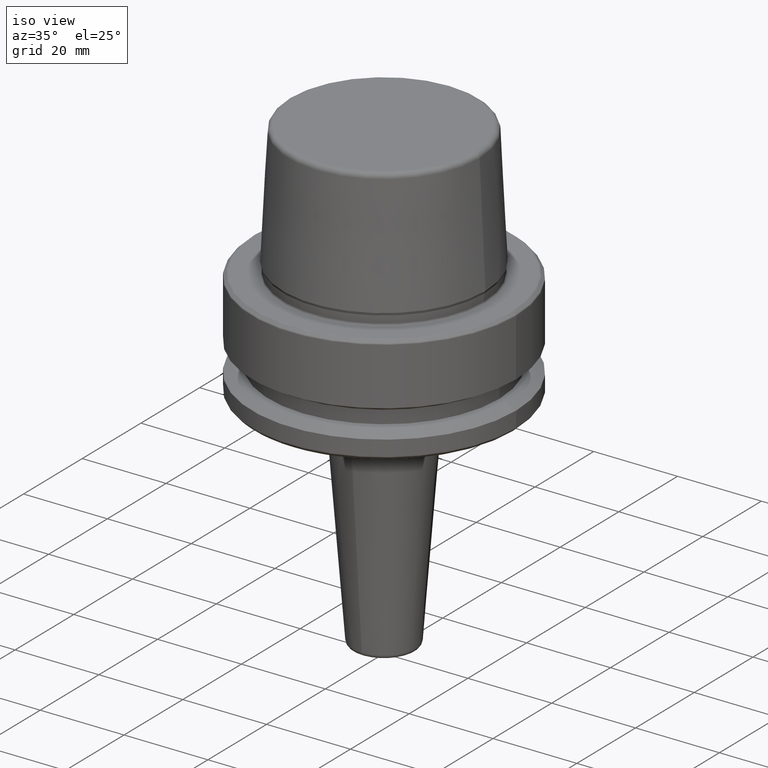
[diagram: clean part render]
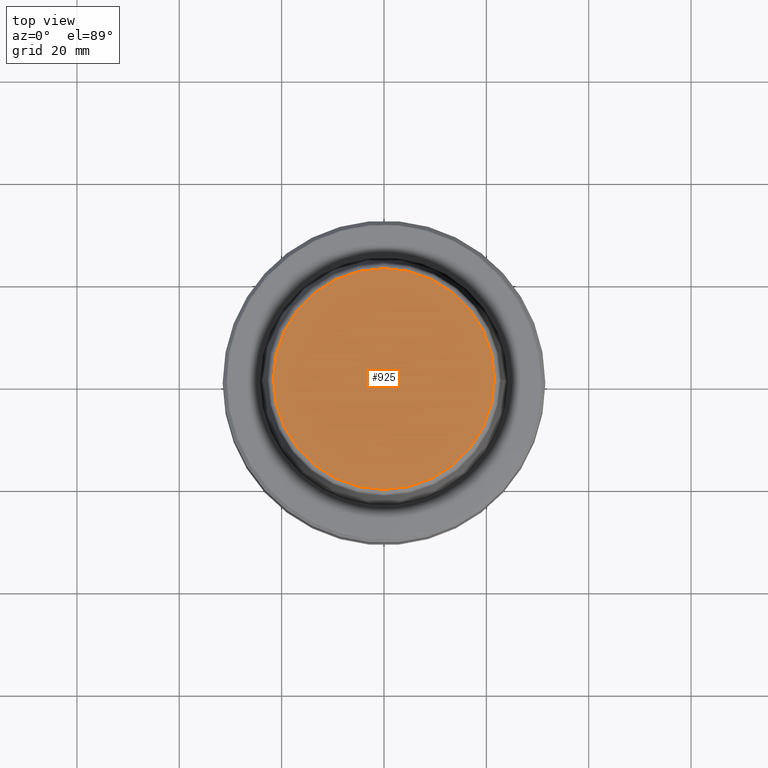
[diagram: tour spotlight — one face highlighted and labeled with its STEP entity id]
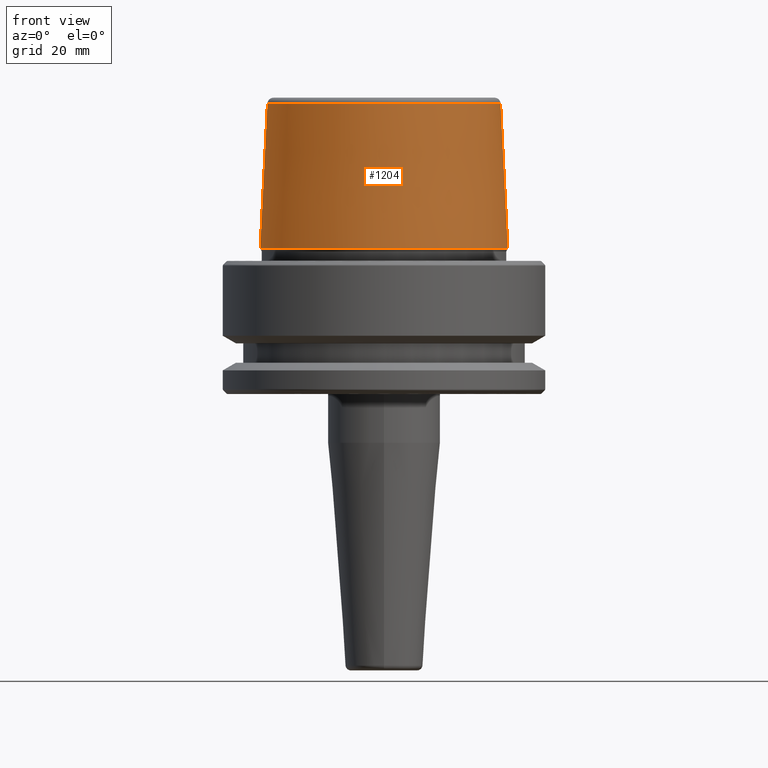
[diagram: tour spotlight — one face highlighted and labeled with its STEP entity id]
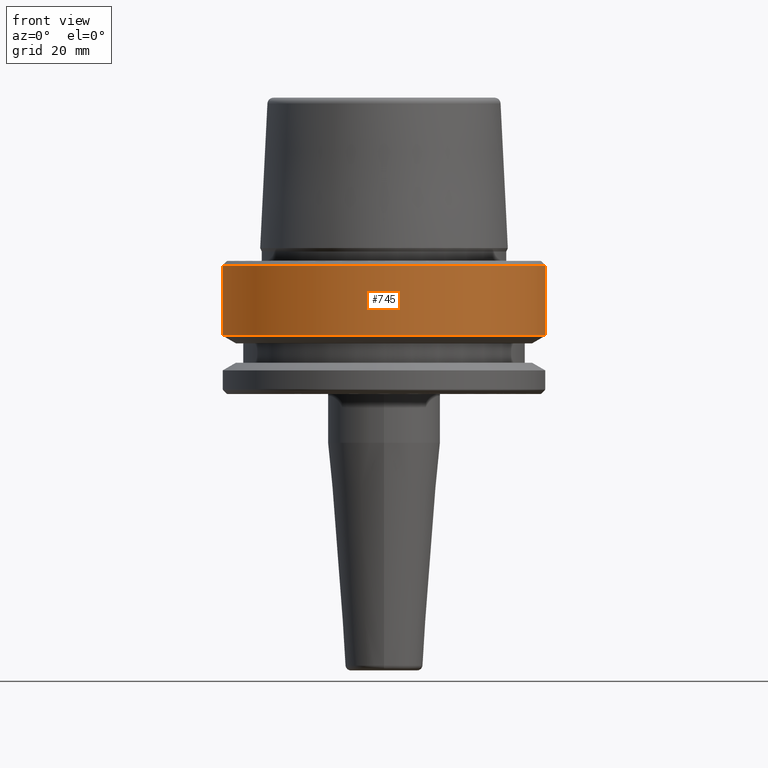
[diagram: tour spotlight — one face highlighted and labeled with its STEP entity id]
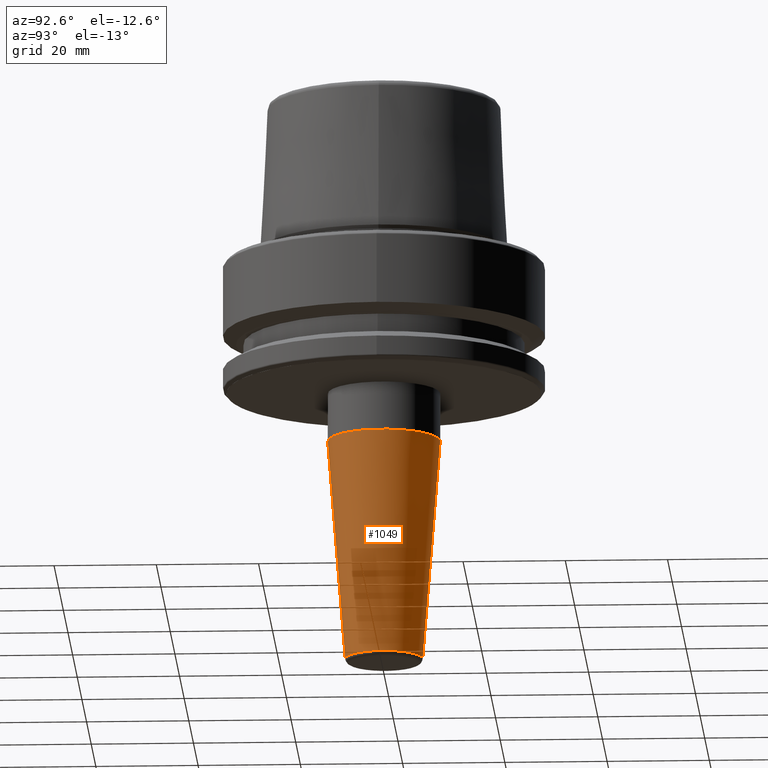
[diagram: tour spotlight — one face highlighted and labeled with its STEP entity id]
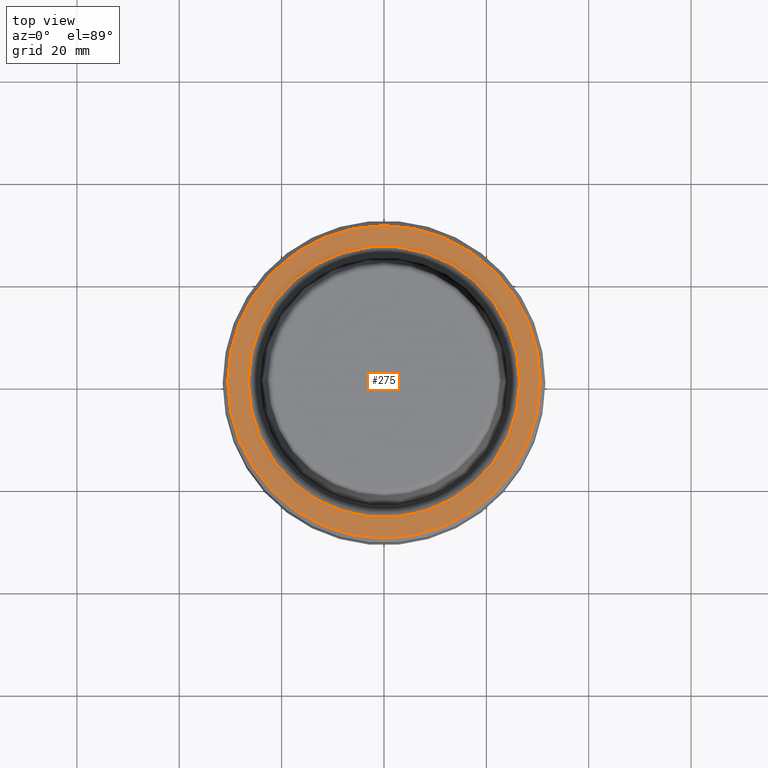
[diagram: tour spotlight — one face highlighted and labeled with its STEP entity id]
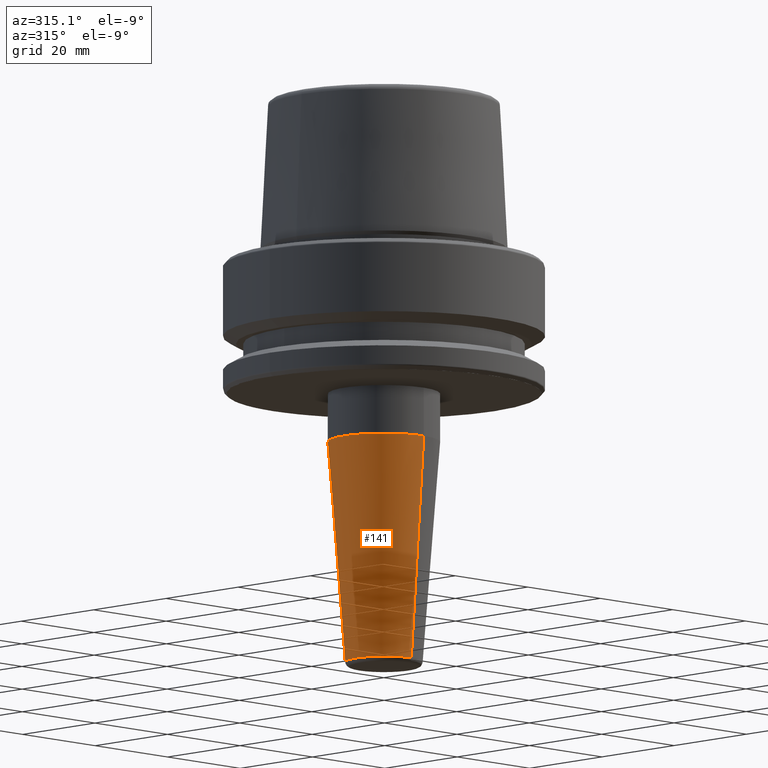
[diagram: tour spotlight — one face highlighted and labeled with its STEP entity id]
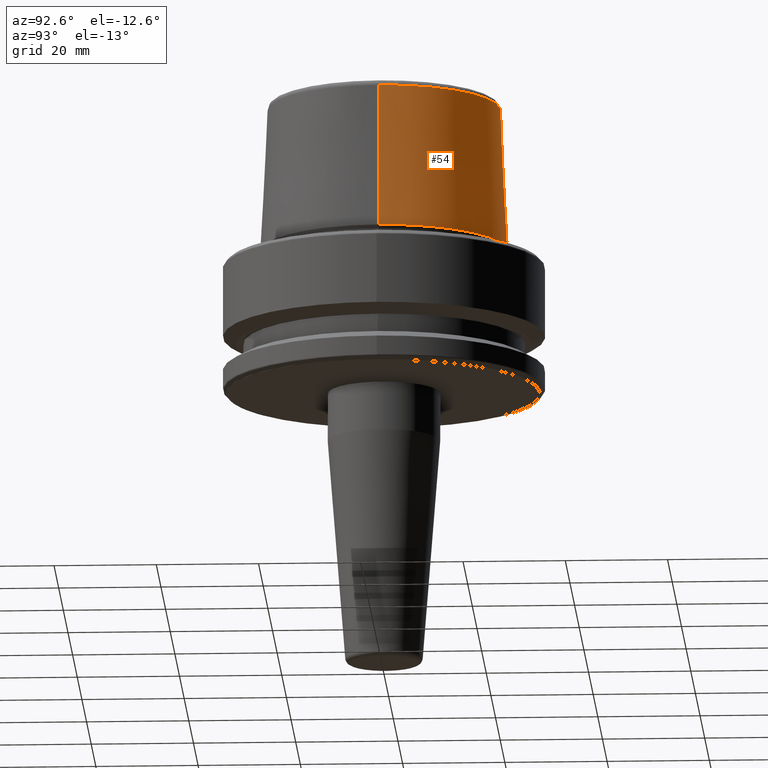
[diagram: tour spotlight — one face highlighted and labeled with its STEP entity id]
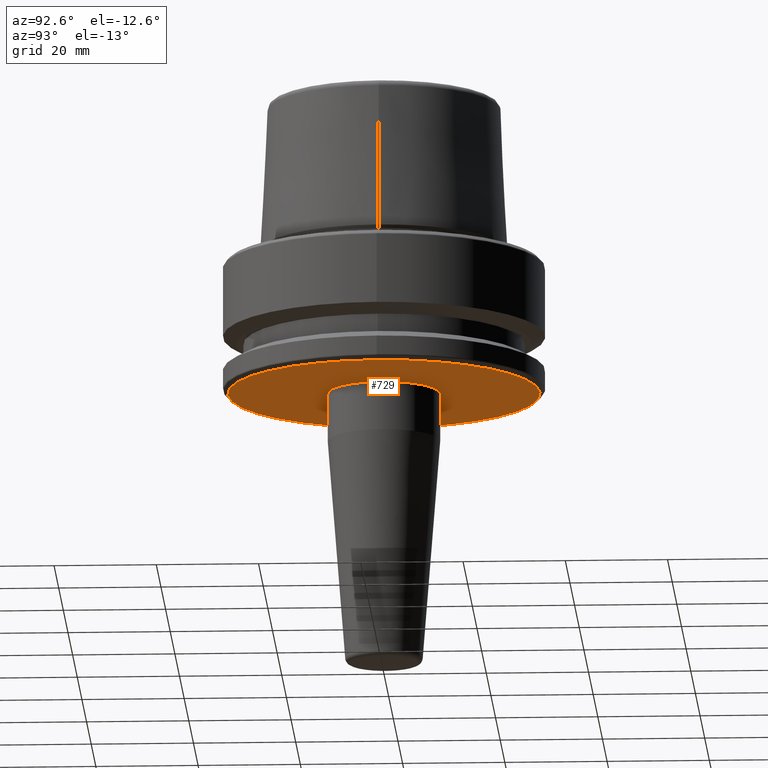
[diagram: tour spotlight — one face highlighted and labeled with its STEP entity id]
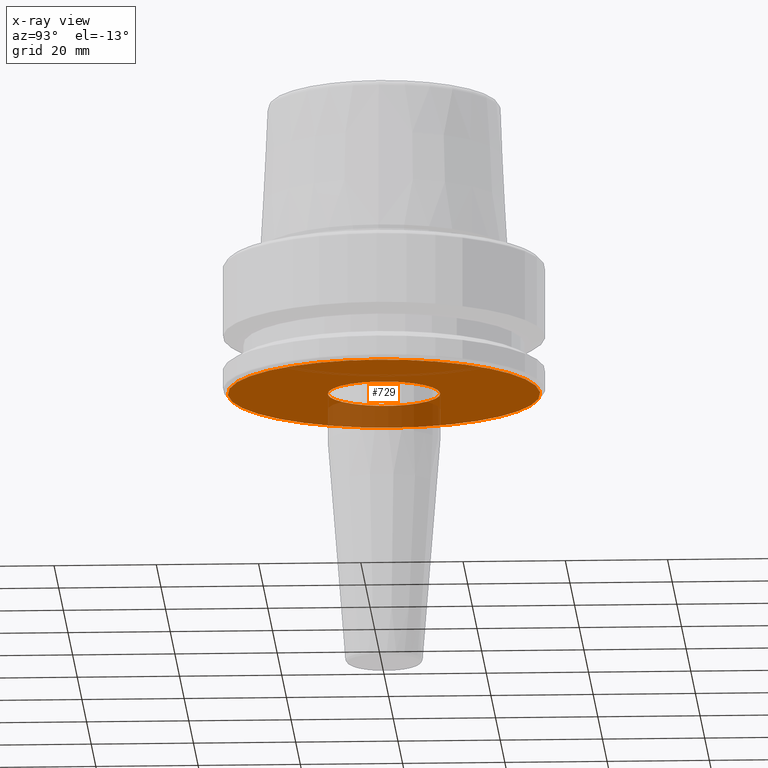
[diagram: x-ray of the same camera — body ghosted, this tour face saturated]
A machine part: a face-by-face anatomy tour. The part has 46 B-rep faces; the first image is the clean iso view, then the 8 largest visible faces are spotlighted one at a time (largest first), each with its STEP entity span.

Face 1 — top view, entity #925. In plain terms, the highlighted planar face has unit normal (0, 0, -1).
Definition (entity closure, byte-faithful):
#11 = CIRCLE ( 'NONE', #1117, 21.58108272732117100 ) ;
#38 = AXIS2_PLACEMENT_3D ( 'NONE', #519, #338, #1011 ) ;
#162 = FACE_OUTER_BOUND ( 'NONE', #433, .T. ) ;
#174 = VERTEX_POINT ( 'NONE', #688 ) ;
#199 = CARTESIAN_POINT ( 'NONE',  ( 0.0000000000000000000, 0.0000000000000000000, 31.89999999999999900 ) ) ;
#278 = DIRECTION ( 'NONE',  ( -0.0000000000000000000, -0.0000000000000000000, 1.000000000000000000 ) ) ;
#303 = DIRECTION ( 'NONE',  ( 1.000000000000000000, 0.0000000000000000000, 0.0000000000000000000 ) ) ;
#338 = DIRECTION ( 'NONE',  ( 0.0000000000000000000, 0.0000000000000000000, -1.000000000000000000 ) ) ;
#342 = CARTESIAN_POINT ( 'NONE',  ( -21.58108272732117100, 2.716307157494421400E-015, 31.89999999999999900 ) ) ;
#417 = EDGE_CURVE ( 'NONE', #174, #1010, #1253, .T. ) ;
#433 = EDGE_LOOP ( 'NONE', ( #886, #1067 ) ) ;
#519 = CARTESIAN_POINT ( 'NONE',  ( 0.0000000000000000000, 0.0000000000000000000, 31.89999999999999900 ) ) ;
#688 = CARTESIAN_POINT ( 'NONE',  ( 21.58108272732117100, 0.0000000000000000000, 31.89999999999999900 ) ) ;
#692 = AXIS2_PLACEMENT_3D ( 'NONE', #857, #278, #811 ) ;
#703 = EDGE_CURVE ( 'NONE', #1010, #174, #11, .T. ) ;
#807 = PLANE ( 'NONE',  #38 ) ;
#811 = DIRECTION ( 'NONE',  ( 1.000000000000000000, 0.0000000000000000000, 0.0000000000000000000 ) ) ;
#857 = CARTESIAN_POINT ( 'NONE',  ( 0.0000000000000000000, 0.0000000000000000000, 31.89999999999999900 ) ) ;
#872 = DIRECTION ( 'NONE',  ( -0.0000000000000000000, -0.0000000000000000000, 1.000000000000000000 ) ) ;
#886 = ORIENTED_EDGE ( 'NONE', *, *, #417, .T. ) ;
#925 = ADVANCED_FACE ( 'NONE', ( #162 ), #807, .F. ) ;
#1010 = VERTEX_POINT ( 'NONE', #342 ) ;
#1011 = DIRECTION ( 'NONE',  ( -1.000000000000000000, 0.0000000000000000000, -0.0000000000000000000 ) ) ;
#1067 = ORIENTED_EDGE ( 'NONE', *, *, #703, .T. ) ;
#1117 = AXIS2_PLACEMENT_3D ( 'NONE', #199, #872, #303 ) ;
#1253 = CIRCLE ( 'NONE', #692, 21.58108272732117100 ) ;

Face 2 — front view, entity #1204. In plain terms, the highlighted conical surface has half-angle 2.868 deg.
Definition (entity closure, byte-faithful):
#70 = DIRECTION ( 'NONE',  ( 1.000000000000000000, 0.0000000000000000000, 0.0000000000000000000 ) ) ;
#110 = CARTESIAN_POINT ( 'NONE',  ( 22.77957961851797100, 2.876386432489616700E-015, 30.76004333261571900 ) ) ;
#189 = VECTOR ( 'NONE', #518, 1000.000000000000200 ) ;
#243 = EDGE_CURVE ( 'NONE', #754, #350, #1140, .T. ) ;
#264 = DIRECTION ( 'NONE',  ( 0.05003611051310804400, 6.127656258166099700E-018, -0.9987474093306675200 ) ) ;
#273 = ORIENTED_EDGE ( 'NONE', *, *, #1092, .F. ) ;
#341 = AXIS2_PLACEMENT_3D ( 'NONE', #1242, #1143, #848 ) ;
#350 = VERTEX_POINT ( 'NONE', #1098 ) ;
#445 = EDGE_CURVE ( 'NONE', #1045, #601, #450, .T. ) ;
#450 = LINE ( 'NONE', #792, #189 ) ;
#469 = CARTESIAN_POINT ( 'NONE',  ( -24.19537568275369200, 2.963078938405201500E-015, 2.500000000000002200 ) ) ;
#518 = DIRECTION ( 'NONE',  ( -0.05003611051310804400, 0.0000000000000000000, -0.9987474093306675200 ) ) ;
#535 = AXIS2_PLACEMENT_3D ( 'NONE', #573, #1251, #673 ) ;
#573 = CARTESIAN_POINT ( 'NONE',  ( 0.0000000000000000000, 0.0000000000000000000, 2.500000000000002200 ) ) ;
#601 = VERTEX_POINT ( 'NONE', #469 ) ;
#611 = EDGE_CURVE ( 'NONE', #601, #350, #779, .T. ) ;
#612 = ORIENTED_EDGE ( 'NONE', *, *, #243, .F. ) ;
#649 = DIRECTION ( 'NONE',  ( -0.0000000000000000000, -0.0000000000000000000, 1.000000000000000000 ) ) ;
#673 = DIRECTION ( 'NONE',  ( 1.000000000000000000, 0.0000000000000000000, 0.0000000000000000000 ) ) ;
#701 = CONICAL_SURFACE ( 'NONE', #341, 24.19537568275369200, 0.05005701257455997400 ) ;
#711 = ORIENTED_EDGE ( 'NONE', *, *, #445, .T. ) ;
#725 = CARTESIAN_POINT ( 'NONE',  ( 24.19537568275369200, 2.963078938405201500E-015, 2.500000000000002200 ) ) ;
#754 = VERTEX_POINT ( 'NONE', #110 ) ;
#779 = CIRCLE ( 'NONE', #535, 24.19537568275369200 ) ;
#792 = CARTESIAN_POINT ( 'NONE',  ( -24.19537568275369200, 0.0000000000000000000, 2.500000000000002200 ) ) ;
#829 = CARTESIAN_POINT ( 'NONE',  ( -22.77957961851797100, 0.0000000000000000000, 30.76004333261571900 ) ) ;
#848 = DIRECTION ( 'NONE',  ( -1.000000000000000000, 0.0000000000000000000, 0.0000000000000000000 ) ) ;
#873 = AXIS2_PLACEMENT_3D ( 'NONE', #1226, #649, #70 ) ;
#884 = VECTOR ( 'NONE', #264, 1000.000000000000200 ) ;
#989 = FACE_OUTER_BOUND ( 'NONE', #1237, .T. ) ;
#1045 = VERTEX_POINT ( 'NONE', #829 ) ;
#1092 = EDGE_CURVE ( 'NONE', #1045, #754, #1178, .T. ) ;
#1098 = CARTESIAN_POINT ( 'NONE',  ( 24.19537568275369200, 0.0000000000000000000, 2.500000000000002200 ) ) ;
#1140 = LINE ( 'NONE', #725, #884 ) ;
#1143 = DIRECTION ( 'NONE',  ( 0.0000000000000000000, 0.0000000000000000000, -1.000000000000000000 ) ) ;
#1178 = CIRCLE ( 'NONE', #873, 22.77957961851797100 ) ;
#1204 = ADVANCED_FACE ( 'NONE', ( #989 ), #701, .T. ) ;
#1219 = ORIENTED_EDGE ( 'NONE', *, *, #611, .T. ) ;
#1226 = CARTESIAN_POINT ( 'NONE',  ( 0.0000000000000000000, 0.0000000000000000000, 30.76004333261571900 ) ) ;
#1237 = EDGE_LOOP ( 'NONE', ( #612, #273, #711, #1219 ) ) ;
#1242 = CARTESIAN_POINT ( 'NONE',  ( 0.0000000000000000000, 0.0000000000000000000, 2.500000000000002200 ) ) ;
#1251 = DIRECTION ( 'NONE',  ( -0.0000000000000000000, -0.0000000000000000000, 1.000000000000000000 ) ) ;

Face 3 — front view, entity #745. In plain terms, the highlighted cylindrical surface (partial cylindrical patch) has radius 31.5 mm, axis along (-0, -0, 1).
Definition (entity closure, byte-faithful):
#7 = DIRECTION ( 'NONE',  ( 1.000000000000000000, 0.0000000000000000000, 0.0000000000000000000 ) ) ;
#51 = VECTOR ( 'NONE', #347, 1000.000000000000000 ) ;
#117 = CARTESIAN_POINT ( 'NONE',  ( 0.0000000000000000000, 0.0000000000000000000, -14.62250092524070100 ) ) ;
#157 = VERTEX_POINT ( 'NONE', #494 ) ;
#195 = CARTESIAN_POINT ( 'NONE',  ( 31.50000000000000000, 0.0000000000000000000, -14.62250092524070100 ) ) ;
#197 = CIRCLE ( 'NONE', #449, 31.50000000000000000 ) ;
#200 = EDGE_CURVE ( 'NONE', #768, #157, #315, .T. ) ;
#205 = VERTEX_POINT ( 'NONE', #195 ) ;
#215 = DIRECTION ( 'NONE',  ( 1.000000000000000000, 0.0000000000000000000, 0.0000000000000000000 ) ) ;
#225 = EDGE_LOOP ( 'NONE', ( #509, #420, #1137, #1085 ) ) ;
#263 = CYLINDRICAL_SURFACE ( 'NONE', #326, 31.50000000000000000 ) ;
#270 = CIRCLE ( 'NONE', #1058, 31.50000000000000000 ) ;
#294 = FACE_OUTER_BOUND ( 'NONE', #225, .T. ) ;
#315 = LINE ( 'NONE', #1177, #51 ) ;
#326 = AXIS2_PLACEMENT_3D ( 'NONE', #1172, #1080, #587 ) ;
#347 = DIRECTION ( 'NONE',  ( -0.0000000000000000000, -0.0000000000000000000, 1.000000000000000000 ) ) ;
#420 = ORIENTED_EDGE ( 'NONE', *, *, #842, .T. ) ;
#449 = AXIS2_PLACEMENT_3D ( 'NONE', #117, #795, #215 ) ;
#494 = CARTESIAN_POINT ( 'NONE',  ( -31.50000000000000000, 3.857637417314162700E-015, -0.9656854249492363700 ) ) ;
#509 = ORIENTED_EDGE ( 'NONE', *, *, #200, .F. ) ;
#583 = DIRECTION ( 'NONE',  ( -0.0000000000000000000, -0.0000000000000000000, 1.000000000000000000 ) ) ;
#587 = DIRECTION ( 'NONE',  ( 1.000000000000000000, 0.0000000000000000000, 0.0000000000000000000 ) ) ;
#644 = DIRECTION ( 'NONE',  ( -0.0000000000000000000, -0.0000000000000000000, 1.000000000000000000 ) ) ;
#679 = CARTESIAN_POINT ( 'NONE',  ( 31.50000000000000000, 0.0000000000000000000, -0.9656854249492363700 ) ) ;
#680 = VERTEX_POINT ( 'NONE', #679 ) ;
#694 = EDGE_CURVE ( 'NONE', #157, #680, #270, .T. ) ;
#745 = ADVANCED_FACE ( 'NONE', ( #294 ), #263, .T. ) ;
#768 = VERTEX_POINT ( 'NONE', #982 ) ;
#795 = DIRECTION ( 'NONE',  ( -0.0000000000000000000, -0.0000000000000000000, 1.000000000000000000 ) ) ;
#842 = EDGE_CURVE ( 'NONE', #768, #205, #197, .T. ) ;
#982 = CARTESIAN_POINT ( 'NONE',  ( -31.50000000000000000, 3.857637417314162700E-015, -14.62250092524070100 ) ) ;
#1058 = AXIS2_PLACEMENT_3D ( 'NONE', #1162, #583, #7 ) ;
#1080 = DIRECTION ( 'NONE',  ( -0.0000000000000000000, -0.0000000000000000000, 1.000000000000000000 ) ) ;
#1082 = EDGE_CURVE ( 'NONE', #205, #680, #1209, .T. ) ;
#1085 = ORIENTED_EDGE ( 'NONE', *, *, #694, .F. ) ;
#1137 = ORIENTED_EDGE ( 'NONE', *, *, #1082, .T. ) ;
#1162 = CARTESIAN_POINT ( 'NONE',  ( 0.0000000000000000000, 0.0000000000000000000, -0.9656854249492363700 ) ) ;
#1172 = CARTESIAN_POINT ( 'NONE',  ( 0.0000000000000000000, 0.0000000000000000000, 78.96908074195309300 ) ) ;
#1177 = CARTESIAN_POINT ( 'NONE',  ( -31.50000000000000000, 3.857637417314162700E-015, 78.96908074195309300 ) ) ;
#1209 = LINE ( 'NONE', #1221, #1244 ) ;
#1221 = CARTESIAN_POINT ( 'NONE',  ( 31.50000000000000000, 0.0000000000000000000, 78.96908074195309300 ) ) ;
#1244 = VECTOR ( 'NONE', #644, 1000.000000000000000 ) ;

Face 4 — auxiliary view, entity #1049. In plain terms, the highlighted conical surface has half-angle 4.5 deg.
Definition (entity closure, byte-faithful):
#23 = DIRECTION ( 'NONE',  ( 9.608468044709195200E-018, 0.07845909572783767200, 0.9969173337331286300 ) ) ;
#41 = EDGE_CURVE ( 'NONE', #345, #274, #261, .T. ) ;
#58 = EDGE_CURVE ( 'NONE', #360, #345, #196, .T. ) ;
#144 = CARTESIAN_POINT ( 'NONE',  ( 0.0000000000000000000, -1.728708414195039000E-015, -35.52828342338443000 ) ) ;
#150 = DIRECTION ( 'NONE',  ( 0.0000000000000000000, -1.000000000000000000, 0.0000000000000000000 ) ) ;
#187 = VERTEX_POINT ( 'NONE', #825 ) ;
#196 = CIRCLE ( 'NONE', #313, 7.572526842074920800 ) ;
#208 = EDGE_LOOP ( 'NONE', ( #1088, #1034, #1096, #888 ) ) ;
#246 = DIRECTION ( 'NONE',  ( 0.0000000000000000000, 1.000000000000000000, 0.0000000000000000000 ) ) ;
#259 = CARTESIAN_POINT ( 'NONE',  ( 0.0000000000000000000, -1.728708414195039000E-015, -35.52828342338443000 ) ) ;
#261 = LINE ( 'NONE', #534, #485 ) ;
#274 = VERTEX_POINT ( 'NONE', #457 ) ;
#281 = CIRCLE ( 'NONE', #358, 10.99999999999999500 ) ;
#313 = AXIS2_PLACEMENT_3D ( 'NONE', #1151, #330, #705 ) ;
#330 = DIRECTION ( 'NONE',  ( -0.0000000000000000000, -1.814291554292374900E-016, -1.000000000000000000 ) ) ;
#345 = VERTEX_POINT ( 'NONE', #1033 ) ;
#353 = DIRECTION ( 'NONE',  ( 0.0000000000000000000, 1.814291554292374900E-016, 1.000000000000000000 ) ) ;
#358 = AXIS2_PLACEMENT_3D ( 'NONE', #144, #822, #246 ) ;
#360 = VERTEX_POINT ( 'NONE', #787 ) ;
#441 = FACE_OUTER_BOUND ( 'NONE', #208, .T. ) ;
#457 = CARTESIAN_POINT ( 'NONE',  ( 0.0000000000000000000, -10.99999999999999600, -35.52828342338443000 ) ) ;
#473 = EDGE_CURVE ( 'NONE', #360, #187, #1185, .T. ) ;
#485 = VECTOR ( 'NONE', #1028, 1000.000000000000200 ) ;
#534 = CARTESIAN_POINT ( 'NONE',  ( 0.0000000000000000000, -10.99999999999999600, -35.52828342338443000 ) ) ;
#677 = VECTOR ( 'NONE', #23, 999.9999999999998900 ) ;
#705 = DIRECTION ( 'NONE',  ( 0.0000000000000000000, 1.000000000000000000, 0.0000000000000000000 ) ) ;
#746 = AXIS2_PLACEMENT_3D ( 'NONE', #259, #353, #150 ) ;
#787 = CARTESIAN_POINT ( 'NONE',  ( 0.0000000000000000000, 7.572526842074911000, -79.07845909572785100 ) ) ;
#822 = DIRECTION ( 'NONE',  ( -0.0000000000000000000, -1.814291554292374900E-016, -1.000000000000000000 ) ) ;
#825 = CARTESIAN_POINT ( 'NONE',  ( 1.347111479062087800E-015, 10.99999999999999300, -35.52828342338443000 ) ) ;
#888 = ORIENTED_EDGE ( 'NONE', *, *, #41, .F. ) ;
#922 = CONICAL_SURFACE ( 'NONE', #746, 10.99999999999999500, 0.07853981633973736200 ) ;
#1007 = EDGE_CURVE ( 'NONE', #187, #274, #281, .T. ) ;
#1028 = DIRECTION ( 'NONE',  ( 0.0000000000000000000, -0.07845909572783729700, 0.9969173337331285200 ) ) ;
#1033 = CARTESIAN_POINT ( 'NONE',  ( 9.273670758604465400E-016, -7.572526842074930500, -79.07845909572785100 ) ) ;
#1034 = ORIENTED_EDGE ( 'NONE', *, *, #473, .T. ) ;
#1049 = ADVANCED_FACE ( 'NONE', ( #441 ), #922, .T. ) ;
#1050 = CARTESIAN_POINT ( 'NONE',  ( 1.347111479062087800E-015, 10.99999999999999300, -35.52828342338443000 ) ) ;
#1088 = ORIENTED_EDGE ( 'NONE', *, *, #58, .F. ) ;
#1096 = ORIENTED_EDGE ( 'NONE', *, *, #1007, .T. ) ;
#1151 = CARTESIAN_POINT ( 'NONE',  ( 0.0000000000000000000, -9.629980005223229000E-015, -79.07845909572785100 ) ) ;
#1185 = LINE ( 'NONE', #1050, #677 ) ;

Face 5 — top view, entity #275. In plain terms, the highlighted planar face has unit normal (0, 0, -1).
Definition (entity closure, byte-faithful):
#29 = ORIENTED_EDGE ( 'NONE', *, *, #1220, .T. ) ;
#35 = EDGE_CURVE ( 'NONE', #496, #1120, #1004, .T. ) ;
#122 = EDGE_LOOP ( 'NONE', ( #409, #29 ) ) ;
#235 = AXIS2_PLACEMENT_3D ( 'NONE', #529, #1077, #1187 ) ;
#275 = ADVANCED_FACE ( 'NONE', ( #1086, #824 ), #781, .F. ) ;
#283 = DIRECTION ( 'NONE',  ( -0.0000000000000000000, -0.0000000000000000000, 1.000000000000000000 ) ) ;
#354 = EDGE_CURVE ( 'NONE', #927, #981, #511, .T. ) ;
#387 = DIRECTION ( 'NONE',  ( -0.0000000000000000000, -0.0000000000000000000, 1.000000000000000000 ) ) ;
#409 = ORIENTED_EDGE ( 'NONE', *, *, #35, .T. ) ;
#424 = EDGE_CURVE ( 'NONE', #981, #927, #959, .T. ) ;
#425 = EDGE_LOOP ( 'NONE', ( #948, #784 ) ) ;
#431 = AXIS2_PLACEMENT_3D ( 'NONE', #501, #1161, #954 ) ;
#434 = CARTESIAN_POINT ( 'NONE',  ( -26.52499999999999900, 3.248375634738354300E-015, 0.0000000000000000000 ) ) ;
#435 = AXIS2_PLACEMENT_3D ( 'NONE', #660, #283, #1248 ) ;
#461 = AXIS2_PLACEMENT_3D ( 'NONE', #956, #387, #1061 ) ;
#496 = VERTEX_POINT ( 'NONE', #532 ) ;
#501 = CARTESIAN_POINT ( 'NONE',  ( 0.0000000000000000000, 0.0000000000000000000, 0.0000000000000000000 ) ) ;
#511 = CIRCLE ( 'NONE', #431, 26.52499999999999900 ) ;
#529 = CARTESIAN_POINT ( 'NONE',  ( 0.0000000000000000000, 26.52499999999999900, -1.111307226797642000E-015 ) ) ;
#532 = CARTESIAN_POINT ( 'NONE',  ( 30.53431457505076100, 0.0000000000000000000, 0.0000000000000000000 ) ) ;
#552 = CARTESIAN_POINT ( 'NONE',  ( -30.53431457505076100, 3.756694181974138600E-015, 0.0000000000000000000 ) ) ;
#602 = DIRECTION ( 'NONE',  ( -0.0000000000000000000, -0.0000000000000000000, 1.000000000000000000 ) ) ;
#628 = CARTESIAN_POINT ( 'NONE',  ( 0.0000000000000000000, 0.0000000000000000000, 0.0000000000000000000 ) ) ;
#660 = CARTESIAN_POINT ( 'NONE',  ( 0.0000000000000000000, 0.0000000000000000000, 0.0000000000000000000 ) ) ;
#781 = PLANE ( 'NONE',  #235 ) ;
#784 = ORIENTED_EDGE ( 'NONE', *, *, #424, .F. ) ;
#815 = AXIS2_PLACEMENT_3D ( 'NONE', #628, #602, #1132 ) ;
#824 = FACE_OUTER_BOUND ( 'NONE', #122, .T. ) ;
#907 = CARTESIAN_POINT ( 'NONE',  ( 26.52499999999999900, 0.0000000000000000000, 0.0000000000000000000 ) ) ;
#927 = VERTEX_POINT ( 'NONE', #907 ) ;
#948 = ORIENTED_EDGE ( 'NONE', *, *, #354, .F. ) ;
#954 = DIRECTION ( 'NONE',  ( 1.000000000000000000, 0.0000000000000000000, 0.0000000000000000000 ) ) ;
#956 = CARTESIAN_POINT ( 'NONE',  ( 0.0000000000000000000, 0.0000000000000000000, 0.0000000000000000000 ) ) ;
#959 = CIRCLE ( 'NONE', #815, 26.52499999999999900 ) ;
#981 = VERTEX_POINT ( 'NONE', #434 ) ;
#1004 = CIRCLE ( 'NONE', #435, 30.53431457505076100 ) ;
#1061 = DIRECTION ( 'NONE',  ( 1.000000000000000000, 0.0000000000000000000, 0.0000000000000000000 ) ) ;
#1077 = DIRECTION ( 'NONE',  ( 0.0000000000000000000, 0.0000000000000000000, -1.000000000000000000 ) ) ;
#1086 = FACE_BOUND ( 'NONE', #425, .T. ) ;
#1120 = VERTEX_POINT ( 'NONE', #552 ) ;
#1132 = DIRECTION ( 'NONE',  ( 1.000000000000000000, 0.0000000000000000000, 0.0000000000000000000 ) ) ;
#1161 = DIRECTION ( 'NONE',  ( -0.0000000000000000000, -0.0000000000000000000, 1.000000000000000000 ) ) ;
#1187 = DIRECTION ( 'NONE',  ( -1.000000000000000000, 0.0000000000000000000, -0.0000000000000000000 ) ) ;
#1216 = CIRCLE ( 'NONE', #461, 30.53431457505076100 ) ;
#1220 = EDGE_CURVE ( 'NONE', #1120, #496, #1216, .T. ) ;
#1248 = DIRECTION ( 'NONE',  ( 1.000000000000000000, 0.0000000000000000000, 0.0000000000000000000 ) ) ;

Face 6 — auxiliary view, entity #141. In plain terms, the highlighted conical surface has half-angle 4.5 deg.
Definition (entity closure, byte-faithful):
#23 = DIRECTION ( 'NONE',  ( 9.608468044709195200E-018, 0.07845909572783767200, 0.9969173337331286300 ) ) ;
#41 = EDGE_CURVE ( 'NONE', #345, #274, #261, .T. ) ;
#75 = CARTESIAN_POINT ( 'NONE',  ( 0.0000000000000000000, -9.629980005223229000E-015, -79.07845909572785100 ) ) ;
#120 = EDGE_CURVE ( 'NONE', #274, #187, #428, .T. ) ;
#128 = FACE_OUTER_BOUND ( 'NONE', #521, .T. ) ;
#141 = ADVANCED_FACE ( 'NONE', ( #128 ), #590, .T. ) ;
#164 = DIRECTION ( 'NONE',  ( 0.0000000000000000000, 1.000000000000000000, 0.0000000000000000000 ) ) ;
#187 = VERTEX_POINT ( 'NONE', #825 ) ;
#247 = AXIS2_PLACEMENT_3D ( 'NONE', #310, #403, #1183 ) ;
#261 = LINE ( 'NONE', #534, #485 ) ;
#274 = VERTEX_POINT ( 'NONE', #457 ) ;
#310 = CARTESIAN_POINT ( 'NONE',  ( 0.0000000000000000000, -1.728708414195039000E-015, -35.52828342338443000 ) ) ;
#345 = VERTEX_POINT ( 'NONE', #1033 ) ;
#349 = ORIENTED_EDGE ( 'NONE', *, *, #1115, .F. ) ;
#360 = VERTEX_POINT ( 'NONE', #787 ) ;
#396 = ORIENTED_EDGE ( 'NONE', *, *, #473, .F. ) ;
#403 = DIRECTION ( 'NONE',  ( 0.0000000000000000000, 1.814291554292374900E-016, 1.000000000000000000 ) ) ;
#428 = CIRCLE ( 'NONE', #983, 10.99999999999999500 ) ;
#457 = CARTESIAN_POINT ( 'NONE',  ( 0.0000000000000000000, -10.99999999999999600, -35.52828342338443000 ) ) ;
#473 = EDGE_CURVE ( 'NONE', #360, #187, #1185, .T. ) ;
#485 = VECTOR ( 'NONE', #1028, 1000.000000000000200 ) ;
#521 = EDGE_LOOP ( 'NONE', ( #396, #349, #868, #676 ) ) ;
#534 = CARTESIAN_POINT ( 'NONE',  ( 0.0000000000000000000, -10.99999999999999600, -35.52828342338443000 ) ) ;
#590 = CONICAL_SURFACE ( 'NONE', #247, 10.99999999999999500, 0.07853981633973736200 ) ;
#676 = ORIENTED_EDGE ( 'NONE', *, *, #120, .T. ) ;
#677 = VECTOR ( 'NONE', #23, 999.9999999999998900 ) ;
#715 = DIRECTION ( 'NONE',  ( 0.0000000000000000000, 1.000000000000000000, 0.0000000000000000000 ) ) ;
#748 = DIRECTION ( 'NONE',  ( -0.0000000000000000000, -1.814291554292374900E-016, -1.000000000000000000 ) ) ;
#756 = CARTESIAN_POINT ( 'NONE',  ( 0.0000000000000000000, -1.728708414195039000E-015, -35.52828342338443000 ) ) ;
#787 = CARTESIAN_POINT ( 'NONE',  ( 0.0000000000000000000, 7.572526842074911000, -79.07845909572785100 ) ) ;
#825 = CARTESIAN_POINT ( 'NONE',  ( 1.347111479062087800E-015, 10.99999999999999300, -35.52828342338443000 ) ) ;
#868 = ORIENTED_EDGE ( 'NONE', *, *, #41, .T. ) ;
#889 = CIRCLE ( 'NONE', #1075, 7.572526842074920800 ) ;
#983 = AXIS2_PLACEMENT_3D ( 'NONE', #756, #1212, #715 ) ;
#1028 = DIRECTION ( 'NONE',  ( 0.0000000000000000000, -0.07845909572783729700, 0.9969173337331285200 ) ) ;
#1033 = CARTESIAN_POINT ( 'NONE',  ( 9.273670758604465400E-016, -7.572526842074930500, -79.07845909572785100 ) ) ;
#1050 = CARTESIAN_POINT ( 'NONE',  ( 1.347111479062087800E-015, 10.99999999999999300, -35.52828342338443000 ) ) ;
#1075 = AXIS2_PLACEMENT_3D ( 'NONE', #75, #748, #164 ) ;
#1115 = EDGE_CURVE ( 'NONE', #345, #360, #889, .T. ) ;
#1183 = DIRECTION ( 'NONE',  ( 0.0000000000000000000, -1.000000000000000000, 0.0000000000000000000 ) ) ;
#1185 = LINE ( 'NONE', #1050, #677 ) ;
#1212 = DIRECTION ( 'NONE',  ( -0.0000000000000000000, -1.814291554292374900E-016, -1.000000000000000000 ) ) ;

Face 7 — auxiliary view, entity #54. In plain terms, the highlighted conical surface has half-angle 2.868 deg.
Definition (entity closure, byte-faithful):
#30 = ORIENTED_EDGE ( 'NONE', *, *, #1107, .F. ) ;
#54 = ADVANCED_FACE ( 'NONE', ( #228 ), #1191, .T. ) ;
#110 = CARTESIAN_POINT ( 'NONE',  ( 22.77957961851797100, 2.876386432489616700E-015, 30.76004333261571900 ) ) ;
#189 = VECTOR ( 'NONE', #518, 1000.000000000000200 ) ;
#228 = FACE_OUTER_BOUND ( 'NONE', #710, .T. ) ;
#230 = AXIS2_PLACEMENT_3D ( 'NONE', #817, #242, #914 ) ;
#242 = DIRECTION ( 'NONE',  ( -0.0000000000000000000, -0.0000000000000000000, 1.000000000000000000 ) ) ;
#243 = EDGE_CURVE ( 'NONE', #754, #350, #1140, .T. ) ;
#264 = DIRECTION ( 'NONE',  ( 0.05003611051310804400, 6.127656258166099700E-018, -0.9987474093306675200 ) ) ;
#265 = CARTESIAN_POINT ( 'NONE',  ( 0.0000000000000000000, 0.0000000000000000000, 30.76004333261571900 ) ) ;
#350 = VERTEX_POINT ( 'NONE', #1098 ) ;
#362 = DIRECTION ( 'NONE',  ( 1.000000000000000000, 0.0000000000000000000, 0.0000000000000000000 ) ) ;
#369 = AXIS2_PLACEMENT_3D ( 'NONE', #623, #539, #381 ) ;
#381 = DIRECTION ( 'NONE',  ( -1.000000000000000000, 0.0000000000000000000, 0.0000000000000000000 ) ) ;
#412 = CIRCLE ( 'NONE', #938, 22.77957961851797100 ) ;
#445 = EDGE_CURVE ( 'NONE', #1045, #601, #450, .T. ) ;
#450 = LINE ( 'NONE', #792, #189 ) ;
#469 = CARTESIAN_POINT ( 'NONE',  ( -24.19537568275369200, 2.963078938405201500E-015, 2.500000000000002200 ) ) ;
#518 = DIRECTION ( 'NONE',  ( -0.05003611051310804400, 0.0000000000000000000, -0.9987474093306675200 ) ) ;
#539 = DIRECTION ( 'NONE',  ( 0.0000000000000000000, 0.0000000000000000000, -1.000000000000000000 ) ) ;
#601 = VERTEX_POINT ( 'NONE', #469 ) ;
#623 = CARTESIAN_POINT ( 'NONE',  ( 0.0000000000000000000, 0.0000000000000000000, 2.500000000000002200 ) ) ;
#710 = EDGE_LOOP ( 'NONE', ( #30, #849, #767, #979 ) ) ;
#725 = CARTESIAN_POINT ( 'NONE',  ( 24.19537568275369200, 2.963078938405201500E-015, 2.500000000000002200 ) ) ;
#754 = VERTEX_POINT ( 'NONE', #110 ) ;
#767 = ORIENTED_EDGE ( 'NONE', *, *, #961, .T. ) ;
#788 = CIRCLE ( 'NONE', #230, 24.19537568275369200 ) ;
#792 = CARTESIAN_POINT ( 'NONE',  ( -24.19537568275369200, 0.0000000000000000000, 2.500000000000002200 ) ) ;
#817 = CARTESIAN_POINT ( 'NONE',  ( 0.0000000000000000000, 0.0000000000000000000, 2.500000000000002200 ) ) ;
#829 = CARTESIAN_POINT ( 'NONE',  ( -22.77957961851797100, 0.0000000000000000000, 30.76004333261571900 ) ) ;
#849 = ORIENTED_EDGE ( 'NONE', *, *, #243, .T. ) ;
#884 = VECTOR ( 'NONE', #264, 1000.000000000000200 ) ;
#914 = DIRECTION ( 'NONE',  ( 1.000000000000000000, 0.0000000000000000000, 0.0000000000000000000 ) ) ;
#936 = DIRECTION ( 'NONE',  ( -0.0000000000000000000, -0.0000000000000000000, 1.000000000000000000 ) ) ;
#938 = AXIS2_PLACEMENT_3D ( 'NONE', #265, #936, #362 ) ;
#961 = EDGE_CURVE ( 'NONE', #350, #601, #788, .T. ) ;
#979 = ORIENTED_EDGE ( 'NONE', *, *, #445, .F. ) ;
#1045 = VERTEX_POINT ( 'NONE', #829 ) ;
#1098 = CARTESIAN_POINT ( 'NONE',  ( 24.19537568275369200, 0.0000000000000000000, 2.500000000000002200 ) ) ;
#1107 = EDGE_CURVE ( 'NONE', #754, #1045, #412, .T. ) ;
#1140 = LINE ( 'NONE', #725, #884 ) ;
#1191 = CONICAL_SURFACE ( 'NONE', #369, 24.19537568275369200, 0.05005701257455997400 ) ;

Face 8 — auxiliary view, entity #729. An x-ray twin of the same camera follows (body ghosted, this face saturated) — the face is partly hidden behind the body. In plain terms, the highlighted planar face has unit normal (0, -0, 1).
Definition (entity closure, byte-faithful):
#12 = DIRECTION ( 'NONE',  ( 0.0000000000000000000, -0.0000000000000000000, 1.000000000000000000 ) ) ;
#36 = FACE_OUTER_BOUND ( 'NONE', #72, .T. ) ;
#66 = CARTESIAN_POINT ( 'NONE',  ( 0.0000000000000000000, 0.0000000000000000000, -26.00000000000001100 ) ) ;
#72 = EDGE_LOOP ( 'NONE', ( #234, #111 ) ) ;
#102 = EDGE_LOOP ( 'NONE', ( #513, #946 ) ) ;
#111 = ORIENTED_EDGE ( 'NONE', *, *, #458, .F. ) ;
#119 = AXIS2_PLACEMENT_3D ( 'NONE', #392, #12, #689 ) ;
#136 = EDGE_CURVE ( 'NONE', #865, #977, #400, .T. ) ;
#138 = CARTESIAN_POINT ( 'NONE',  ( 1.347111479062087600E-015, -10.99999999999999300, -26.00000000000001100 ) ) ;
#139 = CIRCLE ( 'NONE', #1231, 30.53431457505076800 ) ;
#154 = DIRECTION ( 'NONE',  ( 1.000000000000000000, 0.0000000000000000000, 0.0000000000000000000 ) ) ;
#221 = CIRCLE ( 'NONE', #947, 30.53431457505076800 ) ;
#234 = ORIENTED_EDGE ( 'NONE', *, *, #271, .F. ) ;
#271 = EDGE_CURVE ( 'NONE', #912, #536, #139, .T. ) ;
#306 = DIRECTION ( 'NONE',  ( 1.000000000000000000, 0.0000000000000000000, 0.0000000000000000000 ) ) ;
#343 = DIRECTION ( 'NONE',  ( 1.000000000000000000, 0.0000000000000000000, 0.0000000000000000000 ) ) ;
#392 = CARTESIAN_POINT ( 'NONE',  ( 0.0000000000000000000, 30.53431457505076800, -26.00000000000001100 ) ) ;
#400 = CIRCLE ( 'NONE', #727, 10.99999999999999300 ) ;
#458 = EDGE_CURVE ( 'NONE', #536, #912, #221, .T. ) ;
#495 = DIRECTION ( 'NONE',  ( 1.000000000000000000, 0.0000000000000000000, 0.0000000000000000000 ) ) ;
#513 = ORIENTED_EDGE ( 'NONE', *, *, #136, .F. ) ;
#536 = VERTEX_POINT ( 'NONE', #1084 ) ;
#545 = FACE_BOUND ( 'NONE', #102, .T. ) ;
#603 = CARTESIAN_POINT ( 'NONE',  ( 0.0000000000000000000, 10.99999999999999300, -26.00000000000001100 ) ) ;
#689 = DIRECTION ( 'NONE',  ( 1.000000000000000000, 0.0000000000000000000, 0.0000000000000000000 ) ) ;
#727 = AXIS2_PLACEMENT_3D ( 'NONE', #919, #786, #306 ) ;
#729 = ADVANCED_FACE ( 'NONE', ( #36, #545 ), #1168, .F. ) ;
#742 = DIRECTION ( 'NONE',  ( 0.0000000000000000000, 0.0000000000000000000, -1.000000000000000000 ) ) ;
#786 = DIRECTION ( 'NONE',  ( 0.0000000000000000000, 0.0000000000000000000, -1.000000000000000000 ) ) ;
#806 = AXIS2_PLACEMENT_3D ( 'NONE', #66, #742, #154 ) ;
#865 = VERTEX_POINT ( 'NONE', #603 ) ;
#877 = CARTESIAN_POINT ( 'NONE',  ( 0.0000000000000000000, 0.0000000000000000000, -26.00000000000001100 ) ) ;
#912 = VERTEX_POINT ( 'NONE', #1003 ) ;
#919 = CARTESIAN_POINT ( 'NONE',  ( 0.0000000000000000000, 0.0000000000000000000, -26.00000000000001100 ) ) ;
#929 = DIRECTION ( 'NONE',  ( -0.0000000000000000000, -0.0000000000000000000, 1.000000000000000000 ) ) ;
#946 = ORIENTED_EDGE ( 'NONE', *, *, #1071, .F. ) ;
#947 = AXIS2_PLACEMENT_3D ( 'NONE', #1197, #1194, #343 ) ;
#951 = CIRCLE ( 'NONE', #806, 10.99999999999999300 ) ;
#977 = VERTEX_POINT ( 'NONE', #138 ) ;
#1003 = CARTESIAN_POINT ( 'NONE',  ( 30.53431457505076800, 0.0000000000000000000, -26.00000000000001100 ) ) ;
#1071 = EDGE_CURVE ( 'NONE', #977, #865, #951, .T. ) ;
#1084 = CARTESIAN_POINT ( 'NONE',  ( -30.53431457505076800, 3.756694181974139400E-015, -26.00000000000001100 ) ) ;
#1168 = PLANE ( 'NONE',  #119 ) ;
#1194 = DIRECTION ( 'NONE',  ( -0.0000000000000000000, -0.0000000000000000000, 1.000000000000000000 ) ) ;
#1197 = CARTESIAN_POINT ( 'NONE',  ( 0.0000000000000000000, 0.0000000000000000000, -26.00000000000001100 ) ) ;
#1231 = AXIS2_PLACEMENT_3D ( 'NONE', #877, #929, #495 ) ;